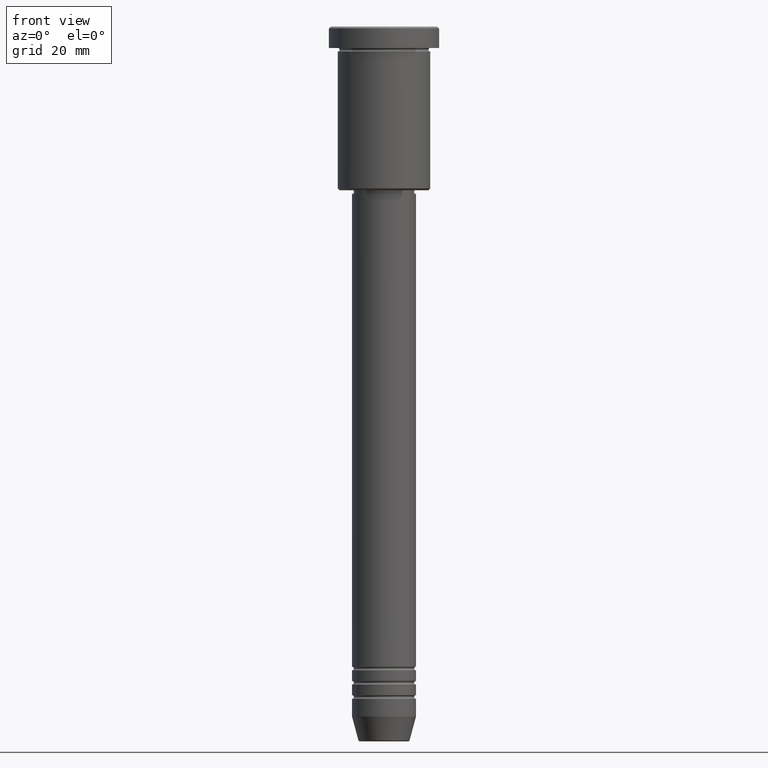
[diagram: clean part render]
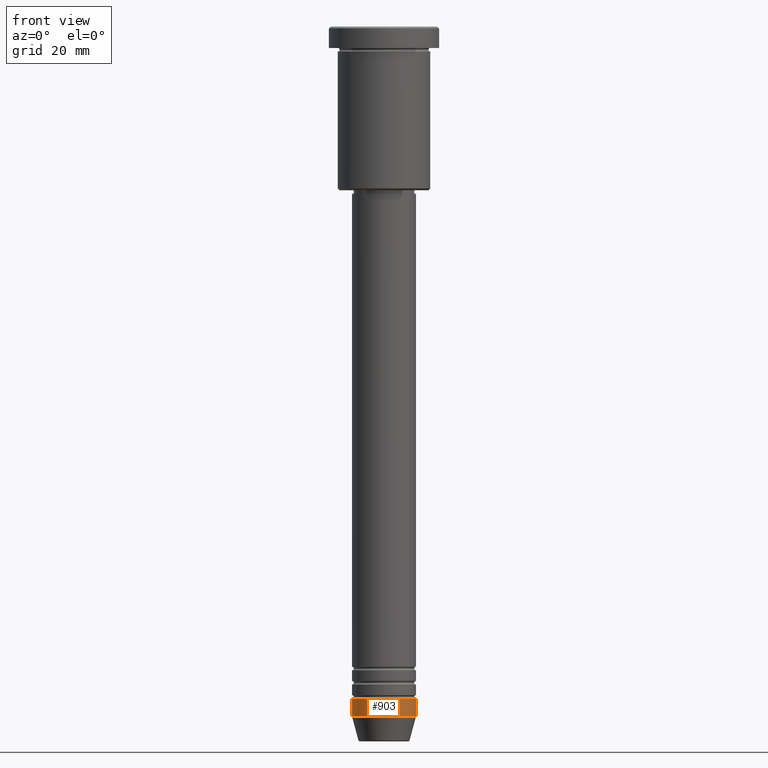
[diagram: same view with one face highlighted and labeled with its STEP entity id]
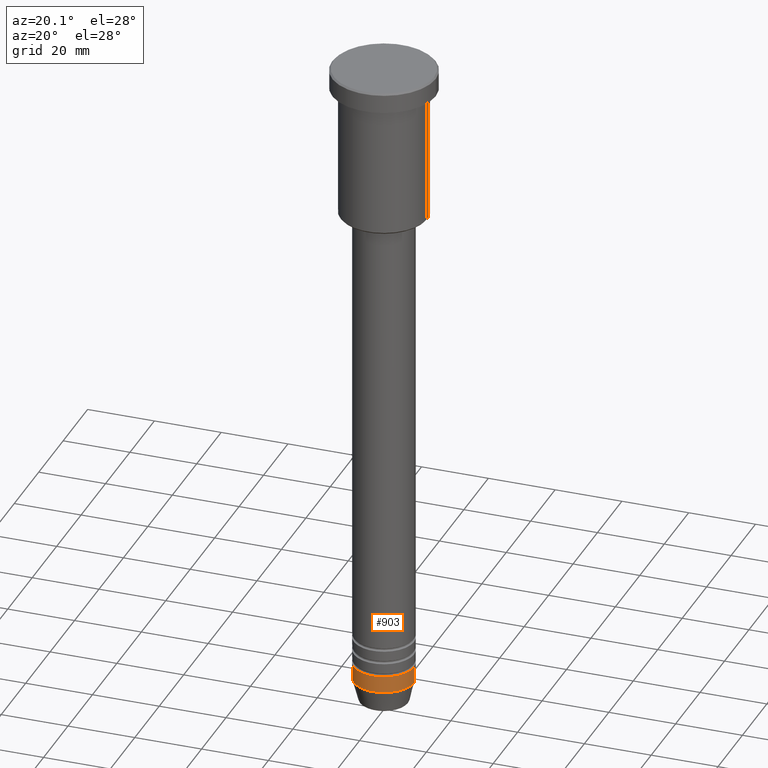
[diagram: same view with one face highlighted and labeled with its STEP entity id]
A machine part, front view. The second image highlights one B-rep face of the part: STEP entity #903.
A second angle (auxiliary view) of the same face is appended — the face is thin or edge-on in the first view.
In plain terms, the highlighted cylindrical surface (edge-blend (fillet) strip) has radius 9 mm, axis along (-0, -0, 1).
Its self-contained STEP definition (entity closure, byte-faithful):
#53 = DIRECTION ( 'NONE',  ( 1.000000000000000000, 0.000000000000000000, 0.000000000000000000 ) ) ;
#70 = LINE ( 'NONE', #426, #197 ) ;
#83 = AXIS2_PLACEMENT_3D ( 'NONE', #318, #1139, #53 ) ;
#111 = CYLINDRICAL_SURFACE ( 'NONE', #975, 9.000000000000000000 ) ;
#113 = EDGE_CURVE ( 'NONE', #820, #1140, #1114, .T. ) ;
#197 = VECTOR ( 'NONE', #430, 1000.000000000000000 ) ;
#229 = ORIENTED_EDGE ( 'NONE', *, *, #573, .T. ) ;
#258 = LINE ( 'NONE', #1074, #799 ) ;
#267 = ORIENTED_EDGE ( 'NONE', *, *, #604, .F. ) ;
#286 = DIRECTION ( 'NONE',  ( 1.000000000000000000, 0.000000000000000000, 0.000000000000000000 ) ) ;
#318 = CARTESIAN_POINT ( 'NONE',  ( 0.000000000000000000, 0.000000000000000000, -194.0000000000000000 ) ) ;
#333 = DIRECTION ( 'NONE',  ( -0.000000000000000000, -0.000000000000000000, 1.000000000000000000 ) ) ;
#336 = CARTESIAN_POINT ( 'NONE',  ( 0.000000000000000000, 0.000000000000000000, -189.0000000000000284 ) ) ;
#344 = CARTESIAN_POINT ( 'NONE',  ( 9.000000000000000000, 0.000000000000000000, -189.0000000000000284 ) ) ;
#426 = CARTESIAN_POINT ( 'NONE',  ( 9.000000000000000000, 0.000000000000000000, 0.000000000000000000 ) ) ;
#430 = DIRECTION ( 'NONE',  ( -0.000000000000000000, -0.000000000000000000, 1.000000000000000000 ) ) ;
#544 = ORIENTED_EDGE ( 'NONE', *, *, #1095, .F. ) ;
#573 = EDGE_CURVE ( 'NONE', #1140, #718, #70, .T. ) ;
#604 = EDGE_CURVE ( 'NONE', #820, #867, #258, .T. ) ;
#645 = FACE_OUTER_BOUND ( 'NONE', #986, .T. ) ;
#710 = AXIS2_PLACEMENT_3D ( 'NONE', #336, #967, #886 ) ;
#718 = VERTEX_POINT ( 'NONE', #344 ) ;
#748 = CIRCLE ( 'NONE', #710, 9.000000000000000000 ) ;
#753 = CARTESIAN_POINT ( 'NONE',  ( -9.000000000000000000, 1.102182119232617714E-15, -189.0000000000000284 ) ) ;
#799 = VECTOR ( 'NONE', #333, 1000.000000000000000 ) ;
#820 = VERTEX_POINT ( 'NONE', #1111 ) ;
#867 = VERTEX_POINT ( 'NONE', #753 ) ;
#886 = DIRECTION ( 'NONE',  ( 1.000000000000000000, 0.000000000000000000, 0.000000000000000000 ) ) ;
#903 = ADVANCED_FACE ( 'NONE', ( #645 ), #111, .T. ) ;
#918 = CARTESIAN_POINT ( 'NONE',  ( 0.000000000000000000, 0.000000000000000000, 0.000000000000000000 ) ) ;
#967 = DIRECTION ( 'NONE',  ( -0.000000000000000000, -0.000000000000000000, 1.000000000000000000 ) ) ;
#975 = AXIS2_PLACEMENT_3D ( 'NONE', #918, #1103, #286 ) ;
#986 = EDGE_LOOP ( 'NONE', ( #267, #1178, #229, #544 ) ) ;
#1074 = CARTESIAN_POINT ( 'NONE',  ( -9.000000000000000000, 1.102182119232617714E-15, 0.000000000000000000 ) ) ;
#1095 = EDGE_CURVE ( 'NONE', #867, #718, #748, .T. ) ;
#1103 = DIRECTION ( 'NONE',  ( -0.000000000000000000, -0.000000000000000000, 1.000000000000000000 ) ) ;
#1111 = CARTESIAN_POINT ( 'NONE',  ( -9.000000000000000000, 1.102182119232617714E-15, -194.0000000000000000 ) ) ;
#1114 = CIRCLE ( 'NONE', #83, 9.000000000000000000 ) ;
#1139 = DIRECTION ( 'NONE',  ( -0.000000000000000000, -0.000000000000000000, 1.000000000000000000 ) ) ;
#1140 = VERTEX_POINT ( 'NONE', #1155 ) ;
#1155 = CARTESIAN_POINT ( 'NONE',  ( 9.000000000000000000, 0.000000000000000000, -194.0000000000000000 ) ) ;
#1178 = ORIENTED_EDGE ( 'NONE', *, *, #113, .T. ) ;